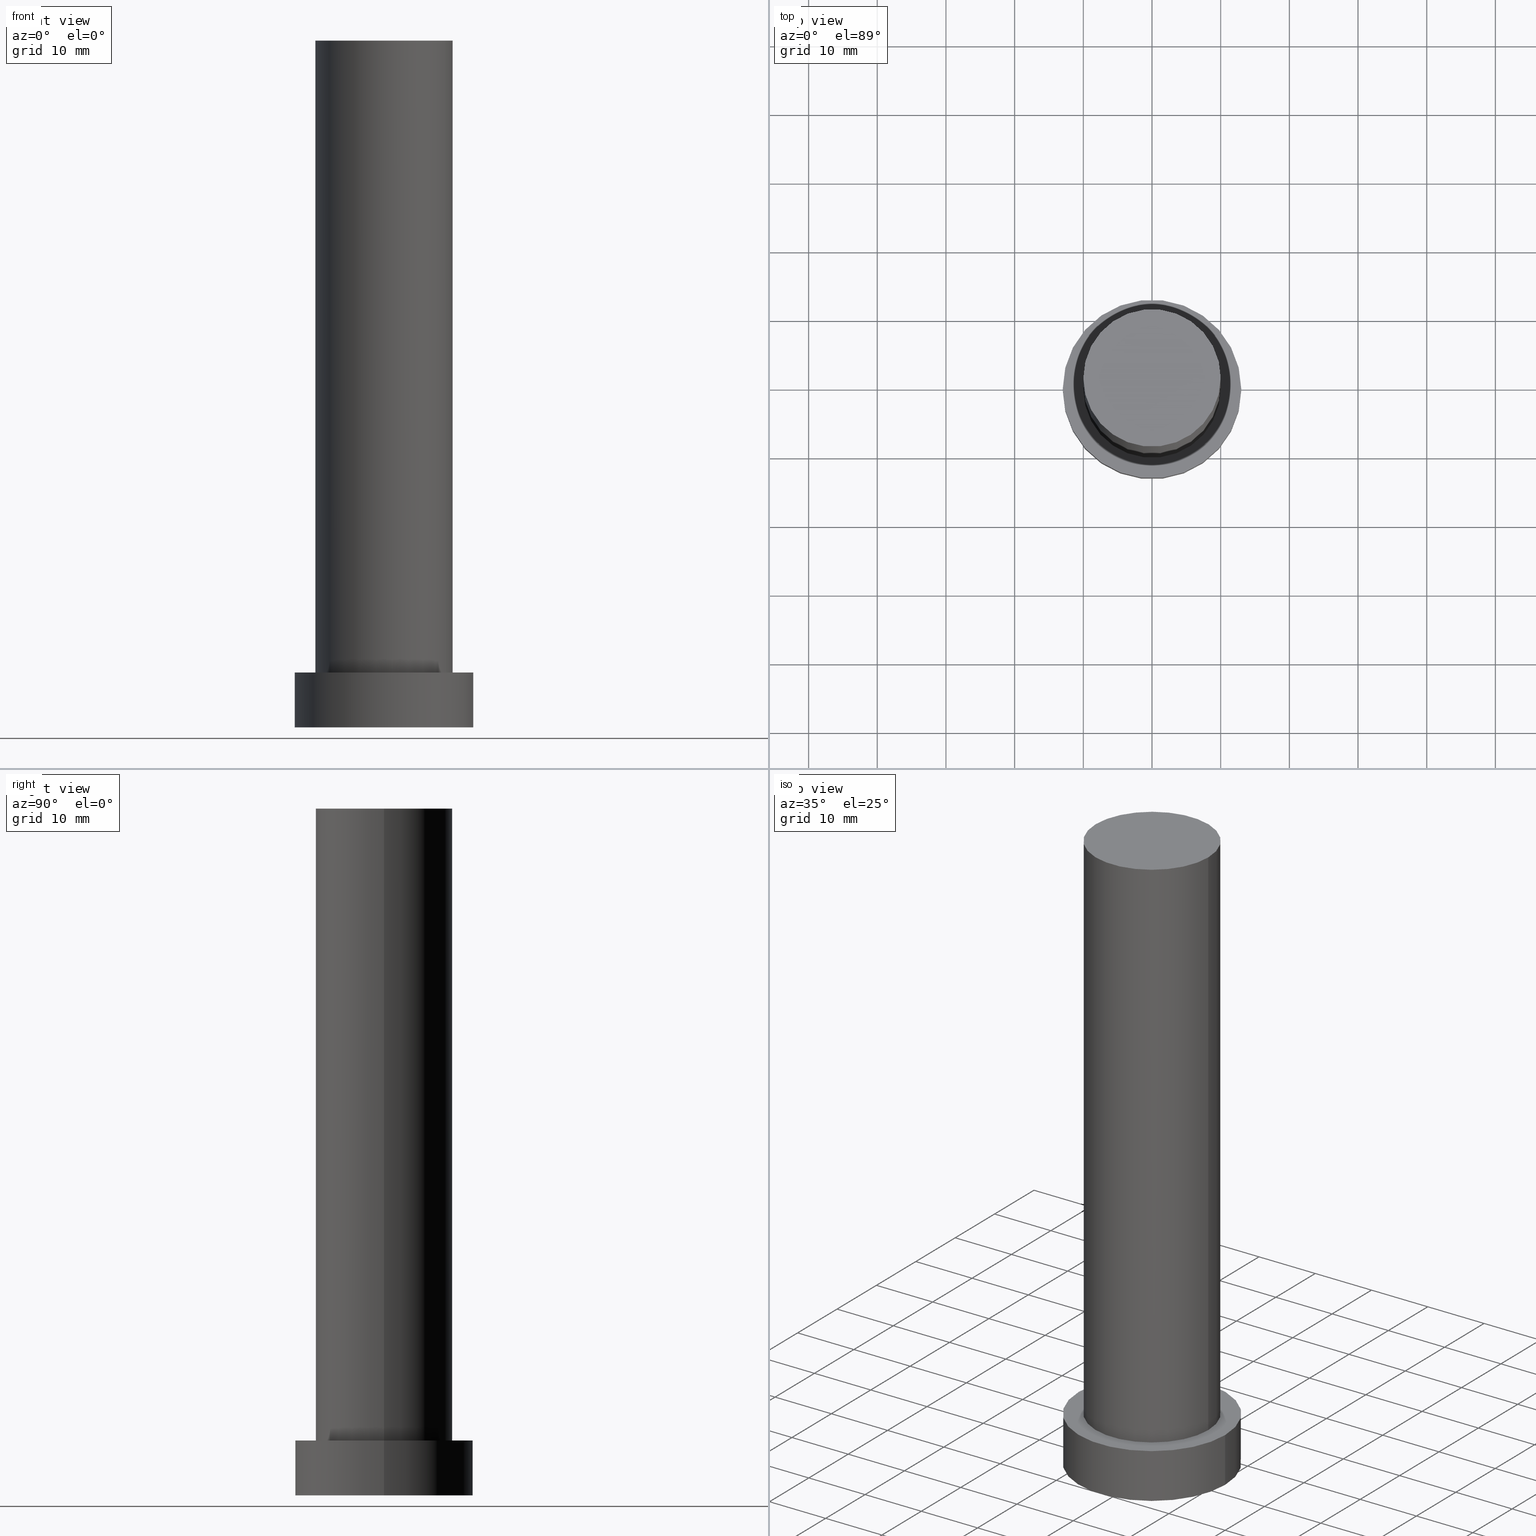
[diagram: canonical four-view strip — front | top / right | iso, engineering-drawing reading convention]
A machine part, canonical four-view strip (front | top / right | iso — engineering-drawing reading convention). The complete STEP part file that produces these views, byte-faithful:
ISO-10303-21;
HEADER;
FILE_DESCRIPTION (( 'STEP AP203' ),
    '1' );
FILE_NAME ('50ec.STEP',
    '2023-02-13T08:44:54',
    ( '' ),
    ( '' ),
    'SwSTEP 2.0',
    'SolidWorks 2019',
    '' );
FILE_SCHEMA (( 'CONFIG_CONTROL_DESIGN' ));
ENDSEC;

DATA;
#1 = DIRECTION ( 'NONE',  ( 1.000000000000000000, 0.000000000000000000, -0.000000000000000000 ) ) ;
#2 = CIRCLE ( 'NONE', #94, 13.00000000000000178 ) ;
#3 = CC_DESIGN_PERSON_AND_ORGANIZATION_ASSIGNMENT ( #251, #227, ( #224 ) ) ;
#4 = LOCAL_TIME ( 9, 44, 54.00000000000000000, #172 ) ;
#5 = LINE ( 'NONE', #215, #206 ) ;
#6 = PERSON ( 'NEUR�EN�', 'NEUR�EN�', 'NEUR�EN�', ('NEUR�EN�'), ('NEUR�EN�'), ('NEUR�EN�') ) ;
#7 = VERTEX_POINT ( 'NONE', #80 ) ;
#8 = ORIENTED_EDGE ( 'NONE', *, *, #45, .T. ) ;
#9 = EDGE_CURVE ( 'NONE', #61, #59, #233, .T. ) ;
#10 = LINE ( 'NONE', #98, #84 ) ;
#11 = EDGE_CURVE ( 'NONE', #88, #61, #86, .T. ) ;
#12 = CYLINDRICAL_SURFACE ( 'NONE', #69, 10.00000000000000178 ) ;
#13 = PRODUCT_DEFINITION_FORMATION_WITH_SPECIFIED_SOURCE ( 'LIBOVOLN�', '', #92, .NOT_KNOWN. ) ;
#14 = PERSON_AND_ORGANIZATION ( #6, #107 ) ;
#15 = ADVANCED_FACE ( 'NONE', ( #103 ), #128, .T. ) ;
#16 = PERSON_AND_ORGANIZATION_ROLE ( 'design_supplier' ) ;
#17 = APPLICATION_PROTOCOL_DEFINITION ( 'international standard', 'config_control_design', 1994, #19 ) ;
#18 = DATE_AND_TIME ( #211, #229 ) ;
#19 = APPLICATION_CONTEXT ( 'configuration controlled 3d designs of mechanical parts and assemblies' ) ;
#20 = CARTESIAN_POINT ( 'NONE',  ( 0.000000000000000000, 0.000000000000000000, 8.000000000000000000 ) ) ;
#21 = CLOSED_SHELL ( 'NONE', ( #49, #102, #93, #72, #200, #156, #15 ) ) ;
#22 = ORIENTED_EDGE ( 'NONE', *, *, #114, .F. ) ;
#23 = CIRCLE ( 'NONE', #171, 13.00000000000000178 ) ;
#24 = EDGE_LOOP ( 'NONE', ( #195, #34 ) ) ;
#25 = DIRECTION ( 'NONE',  ( 1.000000000000000000, 0.000000000000000000, 0.000000000000000000 ) ) ;
#26 = CARTESIAN_POINT ( 'NONE',  ( 0.000000000000000000, 0.000000000000000000, 8.000000000000000000 ) ) ;
#27 = EDGE_CURVE ( 'NONE', #132, #111, #253, .T. ) ;
#28 = CYLINDRICAL_SURFACE ( 'NONE', #243, 13.00000000000000178 ) ;
#29 = AXIS2_PLACEMENT_3D ( 'NONE', #190, #223, #53 ) ;
#30 = DIRECTION ( 'NONE',  ( 0.000000000000000000, 0.000000000000000000, 1.000000000000000000 ) ) ;
#31 = APPLICATION_CONTEXT ( 'configuration controlled 3d designs of mechanical parts and assemblies' ) ;
#32 = CARTESIAN_POINT ( 'NONE',  ( 10.00000000000000178, 1.224646799147353454E-15, 100.0000000000000000 ) ) ;
#33 = DATE_AND_TIME ( #177, #199 ) ;
#34 = ORIENTED_EDGE ( 'NONE', *, *, #154, .T. ) ;
#35 = DATE_AND_TIME ( #36, #4 ) ;
#36 = CALENDAR_DATE ( 2023, 13, 2 ) ;
#37 = EDGE_CURVE ( 'NONE', #59, #7, #2, .T. ) ;
#38 = FACE_BOUND ( 'NONE', #213, .T. ) ;
#39 = ORIENTED_EDGE ( 'NONE', *, *, #37, .F. ) ;
#40 = VECTOR ( 'NONE', #140, 1000.000000000000000 ) ;
#41 = LOCAL_TIME ( 9, 44, 54.00000000000000000, #232 ) ;
#42 = EDGE_LOOP ( 'NONE', ( #221, #39 ) ) ;
#43 = ORIENTED_EDGE ( 'NONE', *, *, #11, .F. ) ;
#44 = DESIGN_CONTEXT ( 'detailed design', #31, 'design' ) ;
#45 = EDGE_CURVE ( 'NONE', #111, #113, #5, .T. ) ;
#46 = CIRCLE ( 'NONE', #120, 13.00000000000000178 ) ;
#47 = ORIENTED_EDGE ( 'NONE', *, *, #55, .T. ) ;
#48 = PLANE ( 'NONE',  #210 ) ;
#49 = ADVANCED_FACE ( 'NONE', ( #219 ), #63, .T. ) ;
#50 = DIRECTION ( 'NONE',  ( 0.000000000000000000, 0.000000000000000000, 1.000000000000000000 ) ) ;
#51 = CC_DESIGN_DATE_AND_TIME_ASSIGNMENT ( #18, #255, ( #87 ) ) ;
#52 = CARTESIAN_POINT ( 'NONE',  ( 0.000000000000000000, 0.000000000000000000, 8.000000000000000000 ) ) ;
#53 = DIRECTION ( 'NONE',  ( 1.000000000000000000, 0.000000000000000000, 0.000000000000000000 ) ) ;
#54 = PERSON_AND_ORGANIZATION ( #6, #107 ) ;
#55 = EDGE_CURVE ( 'NONE', #113, #217, #183, .T. ) ;
#56 = PERSON_AND_ORGANIZATION_ROLE ( 'creator' ) ;
#57 = DIRECTION ( 'NONE',  ( 1.000000000000000000, 0.000000000000000000, 0.000000000000000000 ) ) ;
#58 = CC_DESIGN_PERSON_AND_ORGANIZATION_ASSIGNMENT ( #105, #142, ( #87 ) ) ;
#59 = VERTEX_POINT ( 'NONE', #170 ) ;
#60 = EDGE_CURVE ( 'NONE', #217, #113, #234, .T. ) ;
#61 = VERTEX_POINT ( 'NONE', #109 ) ;
#62 = CYLINDRICAL_SURFACE ( 'NONE', #175, 13.00000000000000178 ) ;
#63 = CYLINDRICAL_SURFACE ( 'NONE', #192, 10.00000000000000178 ) ;
#64 = CC_DESIGN_PERSON_AND_ORGANIZATION_ASSIGNMENT ( #122, #16, ( #13 ) ) ;
#65 = CARTESIAN_POINT ( 'NONE',  ( 0.000000000000000000, 0.000000000000000000, 100.0000000000000000 ) ) ;
#66 = CALENDAR_DATE ( 2023, 13, 2 ) ;
#67 = DIRECTION ( 'NONE',  ( -0.000000000000000000, -0.000000000000000000, -1.000000000000000000 ) ) ;
#68 = DIRECTION ( 'NONE',  ( -1.000000000000000000, 0.000000000000000000, 0.000000000000000000 ) ) ;
#69 = AXIS2_PLACEMENT_3D ( 'NONE', #151, #147, #222 ) ;
#70 = MANIFOLD_SOLID_BREP ( 'P�idat vysunut�m3', #21 ) ;
#71 = DIRECTION ( 'NONE',  ( 0.000000000000000000, 0.000000000000000000, 1.000000000000000000 ) ) ;
#72 = ADVANCED_FACE ( 'NONE', ( #38, #123 ), #254, .T. ) ;
#73 = DATE_TIME_ROLE ( 'creation_date' ) ;
#74 = CALENDAR_DATE ( 2023, 13, 2 ) ;
#75 = ORIENTED_EDGE ( 'NONE', *, *, #239, .F. ) ;
#76 = APPROVAL_PERSON_ORGANIZATION ( #209, #249, #139 ) ;
#77 = APPROVAL_STATUS ( 'not_yet_approved' ) ;
#78 = ORIENTED_EDGE ( 'NONE', *, *, #45, .F. ) ;
#79 = DIRECTION ( 'NONE',  ( 1.000000000000000000, 0.000000000000000000, -0.000000000000000000 ) ) ;
#80 = CARTESIAN_POINT ( 'NONE',  ( -13.00000000000000178, 0.000000000000000000, 0.000000000000000000 ) ) ;
#81 = COORDINATED_UNIVERSAL_TIME_OFFSET ( 1, 0, .AHEAD. ) ;
#82 = DIRECTION ( 'NONE',  ( 0.000000000000000000, 0.000000000000000000, 1.000000000000000000 ) ) ;
#83 = CARTESIAN_POINT ( 'NONE',  ( 13.00000000000000178, 1.592040838891559293E-15, 8.000000000000000000 ) ) ;
#84 = VECTOR ( 'NONE', #90, 1000.000000000000000 ) ;
#85 = ORIENTED_EDGE ( 'NONE', *, *, #27, .F. ) ;
#86 = CIRCLE ( 'NONE', #165, 13.00000000000000178 ) ;
#87 = SECURITY_CLASSIFICATION ( '', '', #138 ) ;
#88 = VERTEX_POINT ( 'NONE', #236 ) ;
#89 = EDGE_LOOP ( 'NONE', ( #246, #43, #189, #162 ) ) ;
#90 = DIRECTION ( 'NONE',  ( -0.000000000000000000, -0.000000000000000000, -1.000000000000000000 ) ) ;
#91 = DIRECTION ( 'NONE',  ( 0.000000000000000000, 0.000000000000000000, 1.000000000000000000 ) ) ;
#92 = PRODUCT ( '50ec', '50ec', '', ( #141 ) ) ;
#93 = ADVANCED_FACE ( 'NONE', ( #129 ), #62, .T. ) ;
#94 = AXIS2_PLACEMENT_3D ( 'NONE', #181, #91, #240 ) ;
#95 = EDGE_LOOP ( 'NONE', ( #225, #8, #47, #145 ) ) ;
#96 = AXIS2_PLACEMENT_3D ( 'NONE', #237, #144, #174 ) ;
#97 =( GEOMETRIC_REPRESENTATION_CONTEXT ( 3 ) GLOBAL_UNCERTAINTY_ASSIGNED_CONTEXT ( ( #184 ) ) GLOBAL_UNIT_ASSIGNED_CONTEXT ( ( #168, #247, #148 ) ) REPRESENTATION_CONTEXT ( 'NONE', 'WORKASPACE' ) );
#98 = CARTESIAN_POINT ( 'NONE',  ( -13.00000000000000178, 0.000000000000000000, 8.000000000000000000 ) ) ;
#99 = DIRECTION ( 'NONE',  ( -0.000000000000000000, -0.000000000000000000, -1.000000000000000000 ) ) ;
#100 = DIRECTION ( 'NONE',  ( 1.000000000000000000, 0.000000000000000000, -0.000000000000000000 ) ) ;
#101 = APPROVAL_STATUS ( 'not_yet_approved' ) ;
#102 = ADVANCED_FACE ( 'NONE', ( #136 ), #28, .T. ) ;
#103 = FACE_OUTER_BOUND ( 'NONE', #24, .T. ) ;
#104 = EDGE_LOOP ( 'NONE', ( #244, #241 ) ) ;
#105 = PERSON_AND_ORGANIZATION ( #6, #107 ) ;
#106 = AXIS2_PLACEMENT_3D ( 'NONE', #152, #30, #137 ) ;
#107 = ORGANIZATION ( 'NEUR�EN�', 'NEUR�EN�', '' ) ;
#108 = PERSON_AND_ORGANIZATION_ROLE ( 'design_owner' ) ;
#109 = CARTESIAN_POINT ( 'NONE',  ( 13.00000000000000178, 1.592040838891559293E-15, 8.000000000000000000 ) ) ;
#110 = CARTESIAN_POINT ( 'NONE',  ( 0.000000000000000000, 0.000000000000000000, 0.000000000000000000 ) ) ;
#111 = VERTEX_POINT ( 'NONE', #32 ) ;
#112 = ORIENTED_EDGE ( 'NONE', *, *, #159, .T. ) ;
#113 = VERTEX_POINT ( 'NONE', #188 ) ;
#114 = EDGE_CURVE ( 'NONE', #88, #7, #10, .T. ) ;
#115 = DIRECTION ( 'NONE',  ( 0.000000000000000000, 0.000000000000000000, 1.000000000000000000 ) ) ;
#116 = AXIS2_PLACEMENT_3D ( 'NONE', #198, #179, #1 ) ;
#117 = DIRECTION ( 'NONE',  ( -0.000000000000000000, -0.000000000000000000, -1.000000000000000000 ) ) ;
#118 = CC_DESIGN_PERSON_AND_ORGANIZATION_ASSIGNMENT ( #54, #56, ( #13 ) ) ;
#119 = CC_DESIGN_PERSON_AND_ORGANIZATION_ASSIGNMENT ( #14, #108, ( #92 ) ) ;
#120 = AXIS2_PLACEMENT_3D ( 'NONE', #226, #71, #164 ) ;
#121 = APPROVAL_PERSON_ORGANIZATION ( #197, #169, #231 ) ;
#122 = PERSON_AND_ORGANIZATION ( #6, #107 ) ;
#123 = FACE_OUTER_BOUND ( 'NONE', #104, .T. ) ;
#124 = EDGE_CURVE ( 'NONE', #7, #59, #46, .T. ) ;
#125 = APPROVAL_STATUS ( 'not_yet_approved' ) ;
#126 = COORDINATED_UNIVERSAL_TIME_OFFSET ( 1, 0, .AHEAD. ) ;
#127 = AXIS2_PLACEMENT_3D ( 'NONE', #178, #82, #79 ) ;
#128 = PLANE ( 'NONE',  #116 ) ;
#129 = FACE_OUTER_BOUND ( 'NONE', #89, .T. ) ;
#130 = DIRECTION ( 'NONE',  ( -0.000000000000000000, -0.000000000000000000, -1.000000000000000000 ) ) ;
#131 = CC_DESIGN_SECURITY_CLASSIFICATION ( #87, ( #13 ) ) ;
#132 = VERTEX_POINT ( 'NONE', #208 ) ;
#133 = AXIS2_PLACEMENT_3D ( 'NONE', #26, #115, #248 ) ;
#134 = CC_DESIGN_APPROVAL ( #249, ( #224 ) ) ;
#135 = CARTESIAN_POINT ( 'NONE',  ( -10.00000000000000178, 0.000000000000000000, 8.000000000000000000 ) ) ;
#136 = FACE_OUTER_BOUND ( 'NONE', #204, .T. ) ;
#137 = DIRECTION ( 'NONE',  ( 1.000000000000000000, 0.000000000000000000, 0.000000000000000000 ) ) ;
#138 = SECURITY_CLASSIFICATION_LEVEL ( 'unclassified' ) ;
#139 = APPROVAL_ROLE ( '' ) ;
#140 = DIRECTION ( 'NONE',  ( -0.000000000000000000, -0.000000000000000000, -1.000000000000000000 ) ) ;
#141 = MECHANICAL_CONTEXT ( 'NONE', #19, 'mechanical' ) ;
#142 = PERSON_AND_ORGANIZATION_ROLE ( 'classification_officer' ) ;
#143 = CIRCLE ( 'NONE', #106, 10.00000000000000178 ) ;
#144 = DIRECTION ( 'NONE',  ( 0.000000000000000000, 0.000000000000000000, 1.000000000000000000 ) ) ;
#145 = ORIENTED_EDGE ( 'NONE', *, *, #159, .F. ) ;
#146 = DIRECTION ( 'NONE',  ( -1.000000000000000000, 0.000000000000000000, 0.000000000000000000 ) ) ;
#147 = DIRECTION ( 'NONE',  ( -0.000000000000000000, -0.000000000000000000, -1.000000000000000000 ) ) ;
#148 =( NAMED_UNIT ( * ) SI_UNIT ( $, .STERADIAN. ) SOLID_ANGLE_UNIT ( ) );
#149 = CARTESIAN_POINT ( 'NONE',  ( 0.000000000000000000, 0.000000000000000000, 0.000000000000000000 ) ) ;
#150 = VECTOR ( 'NONE', #99, 1000.000000000000000 ) ;
#151 = CARTESIAN_POINT ( 'NONE',  ( 0.000000000000000000, 0.000000000000000000, 100.0000000000000000 ) ) ;
#152 = CARTESIAN_POINT ( 'NONE',  ( 0.000000000000000000, 0.000000000000000000, 100.0000000000000000 ) ) ;
#153 = PRODUCT_DEFINITION_SHAPE ( 'NONE', 'NONE',  #224 ) ;
#154 = EDGE_CURVE ( 'NONE', #111, #132, #143, .T. ) ;
#155 = APPROVAL_DATE_TIME ( #194, #157 ) ;
#156 = ADVANCED_FACE ( 'NONE', ( #191 ), #12, .T. ) ;
#157 = APPROVAL ( #125, 'NEUR�EN�' ) ;
#158 = APPROVAL_ROLE ( '' ) ;
#159 = EDGE_CURVE ( 'NONE', #132, #217, #167, .T. ) ;
#160 = COORDINATED_UNIVERSAL_TIME_OFFSET ( 1, 0, .AHEAD. ) ;
#161 = EDGE_LOOP ( 'NONE', ( #78, #85, #112, #202 ) ) ;
#162 = ORIENTED_EDGE ( 'NONE', *, *, #124, .T. ) ;
#163 = ORIENTED_EDGE ( 'NONE', *, *, #55, .F. ) ;
#164 = DIRECTION ( 'NONE',  ( 1.000000000000000000, 0.000000000000000000, 0.000000000000000000 ) ) ;
#165 = AXIS2_PLACEMENT_3D ( 'NONE', #20, #196, #57 ) ;
#166 = CC_DESIGN_APPROVAL ( #157, ( #13 ) ) ;
#167 = LINE ( 'NONE', #250, #150 ) ;
#168 =( LENGTH_UNIT ( ) NAMED_UNIT ( * ) SI_UNIT ( .MILLI., .METRE. ) );
#169 = APPROVAL ( #77, 'NEUR�EN�' ) ;
#170 = CARTESIAN_POINT ( 'NONE',  ( 13.00000000000000178, 1.592040838891559293E-15, 0.000000000000000000 ) ) ;
#171 = AXIS2_PLACEMENT_3D ( 'NONE', #207, #205, #25 ) ;
#172 = COORDINATED_UNIVERSAL_TIME_OFFSET ( 1, 0, .AHEAD. ) ;
#173 = APPROVAL_DATE_TIME ( #35, #249 ) ;
#174 = DIRECTION ( 'NONE',  ( 1.000000000000000000, 0.000000000000000000, 0.000000000000000000 ) ) ;
#175 = AXIS2_PLACEMENT_3D ( 'NONE', #214, #117, #245 ) ;
#176 = PERSON_AND_ORGANIZATION ( #6, #107 ) ;
#177 = CALENDAR_DATE ( 2023, 13, 2 ) ;
#178 = CARTESIAN_POINT ( 'NONE',  ( 0.000000000000000000, 0.000000000000000000, 8.000000000000000000 ) ) ;
#179 = DIRECTION ( 'NONE',  ( 0.000000000000000000, 0.000000000000000000, 1.000000000000000000 ) ) ;
#180 = LOCAL_TIME ( 9, 44, 54.00000000000000000, #126 ) ;
#181 = CARTESIAN_POINT ( 'NONE',  ( 0.000000000000000000, 0.000000000000000000, 0.000000000000000000 ) ) ;
#182 = ORIENTED_EDGE ( 'NONE', *, *, #37, .T. ) ;
#183 = CIRCLE ( 'NONE', #29, 10.00000000000000178 ) ;
#184 = UNCERTAINTY_MEASURE_WITH_UNIT (LENGTH_MEASURE( 1.000000000000000082E-05 ), #168, 'distance_accuracy_value', 'NONE');
#185 = ORIENTED_EDGE ( 'NONE', *, *, #9, .T. ) ;
#186 = DATE_AND_TIME ( #66, #180 ) ;
#187 = ADVANCED_BREP_SHAPE_REPRESENTATION ( '50ec', ( #70, #212 ), #97 ) ;
#188 = CARTESIAN_POINT ( 'NONE',  ( 10.00000000000000178, 1.224646799147353454E-15, 8.000000000000000000 ) ) ;
#189 = ORIENTED_EDGE ( 'NONE', *, *, #114, .T. ) ;
#190 = CARTESIAN_POINT ( 'NONE',  ( 0.000000000000000000, 0.000000000000000000, 8.000000000000000000 ) ) ;
#191 = FACE_OUTER_BOUND ( 'NONE', #161, .T. ) ;
#192 = AXIS2_PLACEMENT_3D ( 'NONE', #65, #130, #146 ) ;
#193 = DIRECTION ( 'NONE',  ( -0.000000000000000000, -0.000000000000000000, -1.000000000000000000 ) ) ;
#194 = DATE_AND_TIME ( #74, #41 ) ;
#195 = ORIENTED_EDGE ( 'NONE', *, *, #27, .T. ) ;
#196 = DIRECTION ( 'NONE',  ( 0.000000000000000000, 0.000000000000000000, 1.000000000000000000 ) ) ;
#197 = PERSON_AND_ORGANIZATION ( #6, #107 ) ;
#198 = CARTESIAN_POINT ( 'NONE',  ( 0.000000000000000000, 0.000000000000000000, 100.0000000000000000 ) ) ;
#199 = LOCAL_TIME ( 9, 44, 54.00000000000000000, #160 ) ;
#200 = ADVANCED_FACE ( 'NONE', ( #220 ), #48, .F. ) ;
#201 = CC_DESIGN_DATE_AND_TIME_ASSIGNMENT ( #33, #73, ( #224 ) ) ;
#202 = ORIENTED_EDGE ( 'NONE', *, *, #60, .T. ) ;
#203 = SHAPE_DEFINITION_REPRESENTATION ( #153, #187 ) ;
#204 = EDGE_LOOP ( 'NONE', ( #75, #185, #182, #22 ) ) ;
#205 = DIRECTION ( 'NONE',  ( 0.000000000000000000, 0.000000000000000000, 1.000000000000000000 ) ) ;
#206 = VECTOR ( 'NONE', #67, 1000.000000000000000 ) ;
#207 = CARTESIAN_POINT ( 'NONE',  ( 0.000000000000000000, 0.000000000000000000, 8.000000000000000000 ) ) ;
#208 = CARTESIAN_POINT ( 'NONE',  ( -10.00000000000000178, 0.000000000000000000, 100.0000000000000000 ) ) ;
#209 = PERSON_AND_ORGANIZATION ( #6, #107 ) ;
#210 = AXIS2_PLACEMENT_3D ( 'NONE', #149, #50, #100 ) ;
#211 = CALENDAR_DATE ( 2023, 13, 2 ) ;
#212 = AXIS2_PLACEMENT_3D ( 'NONE', #110, #230, #235 ) ;
#213 = EDGE_LOOP ( 'NONE', ( #242, #163 ) ) ;
#214 = CARTESIAN_POINT ( 'NONE',  ( 0.000000000000000000, 0.000000000000000000, 8.000000000000000000 ) ) ;
#215 = CARTESIAN_POINT ( 'NONE',  ( 10.00000000000000178, 1.224646799147353454E-15, 100.0000000000000000 ) ) ;
#216 = PRODUCT_RELATED_PRODUCT_CATEGORY ( 'detail', '', ( #92 ) ) ;
#217 = VERTEX_POINT ( 'NONE', #135 ) ;
#218 = APPROVAL_PERSON_ORGANIZATION ( #176, #157, #158 ) ;
#219 = FACE_OUTER_BOUND ( 'NONE', #95, .T. ) ;
#220 = FACE_OUTER_BOUND ( 'NONE', #42, .T. ) ;
#221 = ORIENTED_EDGE ( 'NONE', *, *, #124, .F. ) ;
#222 = DIRECTION ( 'NONE',  ( -1.000000000000000000, 0.000000000000000000, 0.000000000000000000 ) ) ;
#223 = DIRECTION ( 'NONE',  ( 0.000000000000000000, 0.000000000000000000, 1.000000000000000000 ) ) ;
#224 = PRODUCT_DEFINITION ( 'NEZN�M�', '', #13, #44 ) ;
#225 = ORIENTED_EDGE ( 'NONE', *, *, #154, .F. ) ;
#226 = CARTESIAN_POINT ( 'NONE',  ( 0.000000000000000000, 0.000000000000000000, 0.000000000000000000 ) ) ;
#227 = PERSON_AND_ORGANIZATION_ROLE ( 'creator' ) ;
#228 = CC_DESIGN_APPROVAL ( #169, ( #87 ) ) ;
#229 = LOCAL_TIME ( 9, 44, 54.00000000000000000, #81 ) ;
#230 = DIRECTION ( 'NONE',  ( 0.000000000000000000, 0.000000000000000000, 1.000000000000000000 ) ) ;
#231 = APPROVAL_ROLE ( '' ) ;
#232 = COORDINATED_UNIVERSAL_TIME_OFFSET ( 1, 0, .AHEAD. ) ;
#233 = LINE ( 'NONE', #83, #40 ) ;
#234 = CIRCLE ( 'NONE', #133, 10.00000000000000178 ) ;
#235 = DIRECTION ( 'NONE',  ( 1.000000000000000000, 0.000000000000000000, 0.000000000000000000 ) ) ;
#236 = CARTESIAN_POINT ( 'NONE',  ( -13.00000000000000178, 0.000000000000000000, 8.000000000000000000 ) ) ;
#237 = CARTESIAN_POINT ( 'NONE',  ( 0.000000000000000000, 0.000000000000000000, 100.0000000000000000 ) ) ;
#238 = APPROVAL_DATE_TIME ( #186, #169 ) ;
#239 = EDGE_CURVE ( 'NONE', #61, #88, #23, .T. ) ;
#240 = DIRECTION ( 'NONE',  ( 1.000000000000000000, 0.000000000000000000, 0.000000000000000000 ) ) ;
#241 = ORIENTED_EDGE ( 'NONE', *, *, #239, .T. ) ;
#242 = ORIENTED_EDGE ( 'NONE', *, *, #60, .F. ) ;
#243 = AXIS2_PLACEMENT_3D ( 'NONE', #52, #193, #68 ) ;
#244 = ORIENTED_EDGE ( 'NONE', *, *, #11, .T. ) ;
#245 = DIRECTION ( 'NONE',  ( -1.000000000000000000, 0.000000000000000000, 0.000000000000000000 ) ) ;
#246 = ORIENTED_EDGE ( 'NONE', *, *, #9, .F. ) ;
#247 =( NAMED_UNIT ( * ) PLANE_ANGLE_UNIT ( ) SI_UNIT ( $, .RADIAN. ) );
#248 = DIRECTION ( 'NONE',  ( 1.000000000000000000, 0.000000000000000000, 0.000000000000000000 ) ) ;
#249 = APPROVAL ( #101, 'NEUR�EN�' ) ;
#250 = CARTESIAN_POINT ( 'NONE',  ( -10.00000000000000178, 0.000000000000000000, 100.0000000000000000 ) ) ;
#251 = PERSON_AND_ORGANIZATION ( #6, #107 ) ;
#252 = APPLICATION_PROTOCOL_DEFINITION ( 'international standard', 'config_control_design', 1994, #31 ) ;
#253 = CIRCLE ( 'NONE', #96, 10.00000000000000178 ) ;
#254 = PLANE ( 'NONE',  #127 ) ;
#255 = DATE_TIME_ROLE ( 'classification_date' ) ;
ENDSEC;
END-ISO-10303-21;
